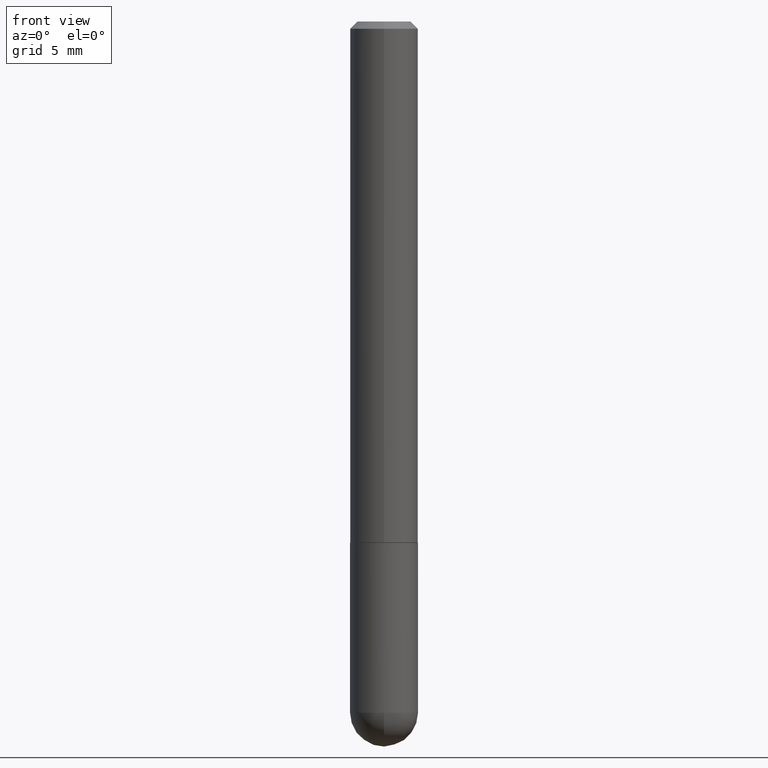
[diagram: clean part render]
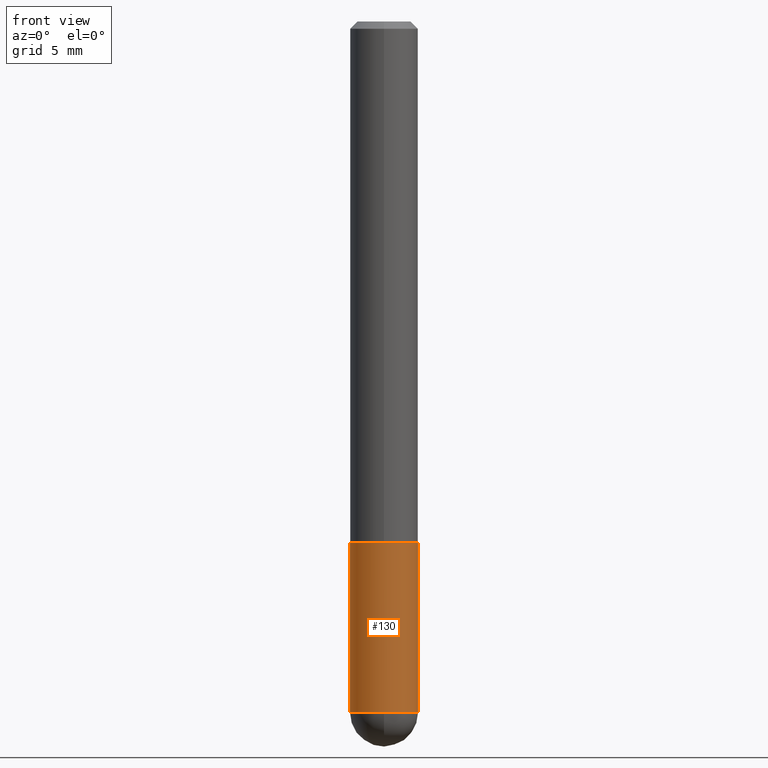
[diagram: same view with one face highlighted and labeled with its STEP entity id]
A machine part, front view. The second image highlights one B-rep face of the part: STEP entity #130.
In plain terms, the highlighted cylindrical surface (edge-blend (fillet) strip) has radius 2.3812 mm, axis along (-0, 0, 1).
Its self-contained STEP definition (entity closure, byte-faithful):
#10 = ORIENTED_EDGE ( 'NONE', *, *, #400, .F. ) ;
#16 = CARTESIAN_POINT ( 'NONE',  ( -6.661338147750496494E-16, -0.09375000000000702216, -1.906249999999999556 ) ) ;
#21 = DIRECTION ( 'NONE',  ( -2.445468806185136597E-29, 3.491481338843145583E-15, 1.000000000000000000 ) ) ;
#30 = EDGE_CURVE ( 'NONE', #185, #366, #121, .T. ) ;
#31 = CARTESIAN_POINT ( 'NONE',  ( -0.09375000000000001388, -5.172059418938000719E-15, -1.437999999999999723 ) ) ;
#36 = DIRECTION ( 'NONE',  ( -2.445468806185136597E-29, 3.491481338843145583E-15, 1.000000000000000000 ) ) ;
#46 = AXIS2_PLACEMENT_3D ( 'NONE', #80, #21, #84 ) ;
#53 = ORIENTED_EDGE ( 'NONE', *, *, #168, .F. ) ;
#57 = AXIS2_PLACEMENT_3D ( 'NONE', #317, #36, #161 ) ;
#70 = VECTOR ( 'NONE', #87, 39.37007874015748143 ) ;
#80 = CARTESIAN_POINT ( 'NONE',  ( 0.000000000000000000, 0.000000000000000000, 0.000000000000000000 ) ) ;
#84 = DIRECTION ( 'NONE',  ( 1.000000000000000000, -6.982962677686266711E-15, 4.876176775795935793E-29 ) ) ;
#86 = VECTOR ( 'NONE', #378, 39.37007874015748143 ) ;
#87 = DIRECTION ( 'NONE',  ( -2.445468806185136877E-29, 3.491481338843145188E-15, 1.000000000000000000 ) ) ;
#106 = CARTESIAN_POINT ( 'NONE',  ( 0.09374999999999998612, -6.492845984746181359E-15, -1.906250000000000000 ) ) ;
#111 = CARTESIAN_POINT ( 'NONE',  ( -0.09374999999999998612, -5.172059418938000719E-15, -1.906250000000000000 ) ) ;
#114 = CARTESIAN_POINT ( 'NONE',  ( -0.09374999999999998612, 6.661338147750938256E-16, -4.611501647113973295E-30 ) ) ;
#121 = CIRCLE ( 'NONE', #347, 0.09374999999999998612 ) ;
#130 = ADVANCED_FACE ( 'NONE', ( #179 ), #371, .T. ) ;
#133 = DIRECTION ( 'NONE',  ( -2.445468806185136597E-29, 3.491481338843145583E-15, 1.000000000000000000 ) ) ;
#143 = DIRECTION ( 'NONE',  ( 1.000000000000000000, -6.982962677686261189E-15, 0.000000000000000000 ) ) ;
#155 = CARTESIAN_POINT ( 'NONE',  ( 0.09375000000000001388, -5.675402916289529772E-15, -1.437999999999999723 ) ) ;
#161 = DIRECTION ( 'NONE',  ( 1.000000000000000000, -6.982962677686263555E-15, 0.000000000000000000 ) ) ;
#168 = EDGE_CURVE ( 'NONE', #412, #276, #176, .T. ) ;
#169 = DIRECTION ( 'NONE',  ( -2.445468806185136597E-29, 3.491481338843145583E-15, 1.000000000000000000 ) ) ;
#173 = ORIENTED_EDGE ( 'NONE', *, *, #30, .T. ) ;
#176 = LINE ( 'NONE', #114, #70 ) ;
#179 = FACE_OUTER_BOUND ( 'NONE', #238, .T. ) ;
#185 = VERTEX_POINT ( 'NONE', #16 ) ;
#198 = EDGE_CURVE ( 'NONE', #366, #224, #269, .T. ) ;
#199 = AXIS2_PLACEMENT_3D ( 'NONE', #258, #133, #143 ) ;
#224 = VERTEX_POINT ( 'NONE', #155 ) ;
#238 = EDGE_LOOP ( 'NONE', ( #53, #300, #173, #284, #10 ) ) ;
#258 = CARTESIAN_POINT ( 'NONE',  ( 3.516584143294225538E-29, -5.020750165256442268E-15, -1.437999999999999723 ) ) ;
#260 = CARTESIAN_POINT ( 'NONE',  ( 4.661674911790416638E-29, -6.655636302169745441E-15, -1.906250000000000000 ) ) ;
#269 = LINE ( 'NONE', #381, #86 ) ;
#276 = VERTEX_POINT ( 'NONE', #31 ) ;
#284 = ORIENTED_EDGE ( 'NONE', *, *, #198, .T. ) ;
#292 = DIRECTION ( 'NONE',  ( 1.000000000000000000, -6.982962677686263555E-15, 0.000000000000000000 ) ) ;
#300 = ORIENTED_EDGE ( 'NONE', *, *, #341, .T. ) ;
#309 = CIRCLE ( 'NONE', #57, 0.09374999999999998612 ) ;
#317 = CARTESIAN_POINT ( 'NONE',  ( 4.661674911790416638E-29, -6.655636302169745441E-15, -1.906250000000000000 ) ) ;
#341 = EDGE_CURVE ( 'NONE', #412, #185, #309, .T. ) ;
#347 = AXIS2_PLACEMENT_3D ( 'NONE', #260, #169, #292 ) ;
#365 = CIRCLE ( 'NONE', #199, 0.09375000000000001388 ) ;
#366 = VERTEX_POINT ( 'NONE', #106 ) ;
#371 = CYLINDRICAL_SURFACE ( 'NONE', #46, 0.09374999999999998612 ) ;
#378 = DIRECTION ( 'NONE',  ( -2.445468806185136877E-29, 3.491481338843145188E-15, 1.000000000000000000 ) ) ;
#381 = CARTESIAN_POINT ( 'NONE',  ( 0.09374999999999998612, -6.546527510330874055E-16, 4.571415727308689105E-30 ) ) ;
#400 = EDGE_CURVE ( 'NONE', #276, #224, #365, .T. ) ;
#412 = VERTEX_POINT ( 'NONE', #111 ) ;